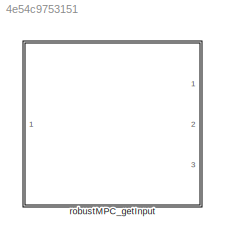
MODEL slx_4e54c9753151
KIND model
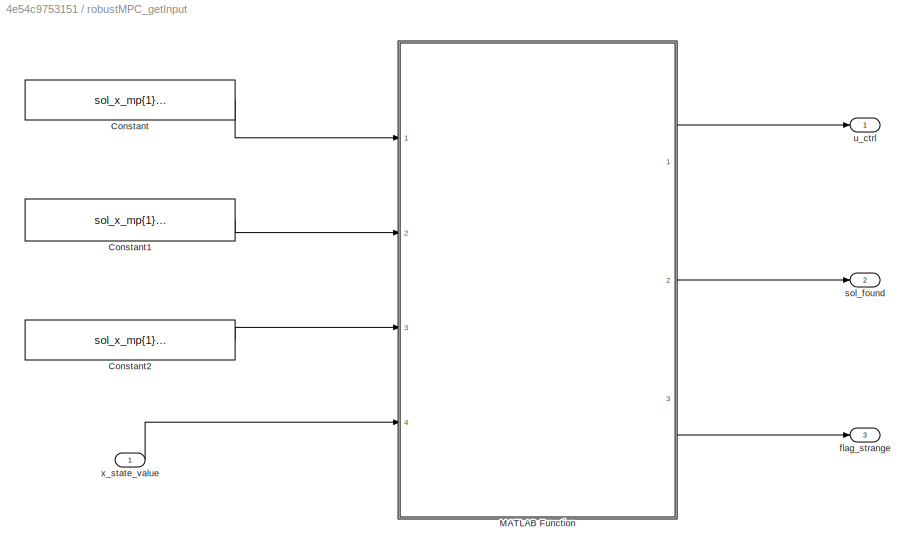
BLOCK [SubSystem] robustMPC_getInput
  FunctionWithSeparateData = off
  MaskHideContents = off
  MinAlgLoopOccurrences = off
  Opaque = off
  Ports = [1, 3]
  PropExecContextOutsideSubsystem = off
  RTWSystemCode = Auto
  RequestExecContextInheritance = off
BLOCK [Constant] robustMPC_getInput/Constant
  Value = sol_x_mp{1}.Pn
BLOCK [Constant] robustMPC_getInput/Constant1
  Value = sol_x_mp{1}.Fi
BLOCK [Constant] robustMPC_getInput/Constant2
  Value = sol_x_mp{1}.Gi
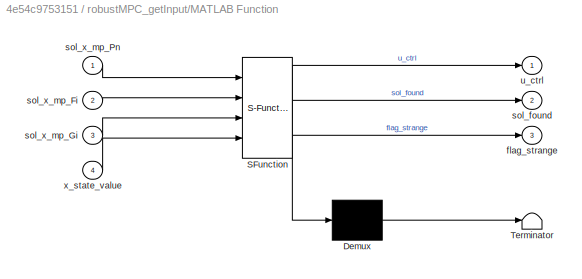
BLOCK [SubSystem] robustMPC_getInput/MATLAB Function
  ErrorFcn = Stateflow.Translate.translate
  FunctionWithSeparateData = off
  MaskHideContents = off
  MinAlgLoopOccurrences = off
  Opaque = off
  PermitHierarchicalResolution = ExplicitOnly
  Ports = [4, 3]
  PropExecContextOutsideSubsystem = off
  RTWSystemCode = Auto
  RequestExecContextInheritance = off
  SFBlockType = MATLAB Function
  TreatAsAtomicUnit = on
BLOCK [Demux] robustMPC_getInput/MATLAB Function/ Demux 
  Outputs = 1
  Ports = [1, 1]
BLOCK [S-Function] robustMPC_getInput/MATLAB Function/ SFunction 
  EnableBusSupport = off
  FunctionName = sf_sfun
  PortCounts = [4 4]
  Ports = [4, 4]
  Tag = Stateflow S-Function robustMPC_getInput_mdl 2
BLOCK [Terminator] robustMPC_getInput/MATLAB Function/ Terminator 
BLOCK [Outport] robustMPC_getInput/MATLAB Function/flag_strange
  IconDisplay = Port number
  Port = 3
BLOCK [Outport] robustMPC_getInput/MATLAB Function/sol_found
  IconDisplay = Port number
  Port = 2
BLOCK [Inport] robustMPC_getInput/MATLAB Function/sol_x_mp_Fi
  IconDisplay = Port number
  Port = 2
BLOCK [Inport] robustMPC_getInput/MATLAB Function/sol_x_mp_Gi
  IconDisplay = Port number
  Port = 3
BLOCK [Inport] robustMPC_getInput/MATLAB Function/sol_x_mp_Pn
  IconDisplay = Port number
BLOCK [Outport] robustMPC_getInput/MATLAB Function/u_ctrl
  IconDisplay = Port number
BLOCK [Inport] robustMPC_getInput/MATLAB Function/x_state_value
  IconDisplay = Port number
  Port = 4
BLOCK [Outport] robustMPC_getInput/flag_strange
  IconDisplay = Port number
  Port = 3
BLOCK [Outport] robustMPC_getInput/sol_found
  IconDisplay = Port number
  Port = 2
BLOCK [Outport] robustMPC_getInput/u_ctrl
  IconDisplay = Port number
BLOCK [Inport] robustMPC_getInput/x_state_value
  IconDisplay = Port number
LINE robustMPC_getInput/Constant1:1 -> robustMPC_getInput/MATLAB Function:2
LINE robustMPC_getInput/Constant2:1 -> robustMPC_getInput/MATLAB Function:3
LINE robustMPC_getInput/Constant:1 -> robustMPC_getInput/MATLAB Function:1
LINE robustMPC_getInput/MATLAB Function:1 -> robustMPC_getInput/u_ctrl:1
LINE robustMPC_getInput/MATLAB Function:2 -> robustMPC_getInput/sol_found:1
LINE robustMPC_getInput/MATLAB Function:3 -> robustMPC_getInput/flag_strange:1
LINE robustMPC_getInput/x_state_value:1 -> robustMPC_getInput/MATLAB Function:4
